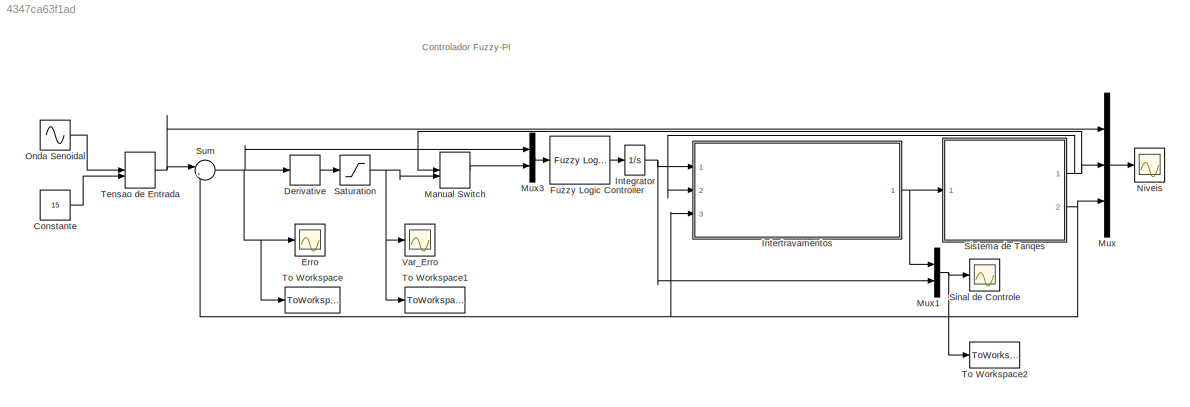
MODEL slx_4347ca63f1ad
KIND model
CONFIG AbsTol = auto
CONFIG EnableMultiTasking = on
CONFIG FixedStep = 0.1
CONFIG MaxStep = 5e-1
CONFIG MinStep = auto
CONFIG RelTol = 1e-3
CONFIG SampleTimeConstraint = Unconstrained
CONFIG Solver = ode45
CONFIG SolverName = ode45
CONFIG StartTime = 0.0
CONFIG StopTime = 250
BLOCK [Constant] Constante
  Value = 15
BLOCK [Derivative] Derivative
BLOCK [Scope] Erro
  Floating = off
  NumInputPorts = 1
  Ports = [1]
  ScopeSpecificationString = Simulink.scopes.TimeScopeBlockCfg('CurrentConfiguration', extmgr.ConfigurationSet(extmgr.Configuration('Core','General UI',true,'FigureColor',[0.941176470588235 0.941176470588235 0.941176470588235]),extmgr.Configuration('Core','Source UI',true),extmgr.Configuration('Sources','WiredSimulink',true,'DataLoggingVariableName','ScopeData2','DataLoggingLimitDataPoints',true,'DataLoggingSaveFormat','Array...<+2866ch>
BLOCK [Reference] Fuzzy Logic Controller  REF=fuzblock/Fuzzy Logic   (lib defined in mdl_858b3b3e7478)
Controller
  Ports = [1, 1]
  SourceBlock = fuzblock/Fuzzy Logic \nController
  SourceProductBaseCode = FL
  SourceType = Fuzzy Inference System
BLOCK [Integrator] Integrator
  Ports = [1, 1]
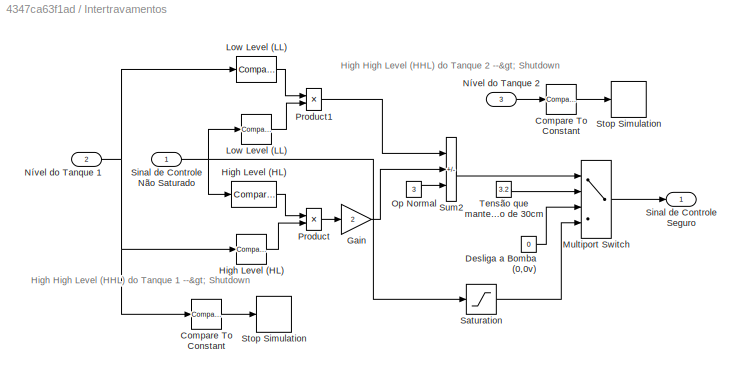
BLOCK [SubSystem] Intertravamentos
  Ports = [3, 1]
  RequestExecContextInheritance = off
BLOCK [Reference] Intertravamentos/Compare To  Constant  REF=simulink/Logic and Bit
Operations/Compare
To Constant
  Ports = [1, 1]
  SourceBlock = simulink/Logic and Bit\nOperations/Compare\nTo Constant
  SourceProductBaseCode = SL
  SourceType = Compare To Constant
BLOCK [Reference] Intertravamentos/Compare To Constant  REF=simulink/Logic and Bit
Operations/Compare
To Constant
  Ports = [1, 1]
  SourceBlock = simulink/Logic and Bit\nOperations/Compare\nTo Constant
  SourceProductBaseCode = SL
  SourceType = Compare To Constant
BLOCK [Constant] Intertravamentos/Desliga a Bomba (0,0v)
  Value = 0
BLOCK [Gain] Intertravamentos/Gain
  Gain = 2
  NameLocation = top
BLOCK [Reference] Intertravamentos/High  Level (HL)  REF=simulink/Logic and Bit
Operations/Compare
To Constant
  NameLocation = top
  Ports = [1, 1]
  SourceBlock = simulink/Logic and Bit\nOperations/Compare\nTo Constant
  SourceProductBaseCode = SL
  SourceType = Compare To Constant
BLOCK [Reference] Intertravamentos/High Level (HL)     REF=simulink/Logic and Bit
Operations/Compare
To Constant
  NameLocation = top
  Ports = [1, 1]
  SourceBlock = simulink/Logic and Bit\nOperations/Compare\nTo Constant
  SourceProductBaseCode = SL
  SourceType = Compare To Constant
BLOCK [Reference] Intertravamentos/Low  Level (LL)  REF=simulink/Logic and Bit
Operations/Compare
To Constant
  NameLocation = top
  Ports = [1, 1]
  SourceBlock = simulink/Logic and Bit\nOperations/Compare\nTo Constant
  SourceProductBaseCode = SL
  SourceType = Compare To Constant
BLOCK [Reference] Intertravamentos/Low Level (LL)  REF=simulink/Logic and Bit
Operations/Compare
To Constant
  NameLocation = top
  Ports = [1, 1]
  SourceBlock = simulink/Logic and Bit\nOperations/Compare\nTo Constant
  SourceProductBaseCode = SL
  SourceType = Compare To Constant
BLOCK [MultiPortSwitch] Intertravamentos/Multiport Switch
  InputSameDT = off
  Ports = [4, 1]
  SaturateOnIntegerOverflow = off
BLOCK [Inport] Intertravamentos/Nível do Tanque 1
  Port = 2
BLOCK [Inport] Intertravamentos/Nível do Tanque 2
  Port = 3
BLOCK [Constant] Intertravamentos/Op Normal
  Value = 3
BLOCK [Product] Intertravamentos/Product
  Ports = [2, 1]
BLOCK [Product] Intertravamentos/Product1
  Ports = [2, 1]
BLOCK [Saturate] Intertravamentos/Saturation
  LowerLimit = -4
  UpperLimit = 4
BLOCK [Inport] Intertravamentos/Sinal de Controle Não Saturado
BLOCK [Outport] Intertravamentos/Sinal de Controle Seguro
BLOCK [Stop] Intertravamentos/Stop  Simulation
BLOCK [Stop] Intertravamentos/Stop Simulation
BLOCK [Sum] Intertravamentos/Sum2
  IconShape = rectangular
  Inputs = --+
  Ports = [3, 1]
BLOCK [Constant] Intertravamentos/Tensão que mantem nível 1 próximo de 30cm
  Value = 3.2
BLOCK [ManualSwitch] Manual Switch
  CurrentSetting = 0
BLOCK [Mux] Mux
  DisplayOption = bar
  Inputs = 3
  Ports = [3, 1]
BLOCK [Mux] Mux1
  DisplayOption = bar
  Inputs = 2
  Ports = [2, 1]
BLOCK [Mux] Mux3
  DisplayOption = bar
  Inputs = 2
  Ports = [2, 1]
BLOCK [Scope] Niveis
  Floating = off
  NumInputPorts = 1
  Ports = [1]
  ScopeSpecificationString = Simulink.scopes.TimeScopeBlockCfg('CurrentConfiguration', extmgr.ConfigurationSet(extmgr.Configuration('Core','General UI',true,'FigureColor',[0.941176470588235 0.941176470588235 0.941176470588235]),extmgr.Configuration('Core','Source UI',true),extmgr.Configuration('Sources','WiredSimulink',true,'DataLogging',true,'DataLoggingVariableName','Niveis','DataLoggingMaxPoints','500000','DataLoggingLimit...<+2969ch>
BLOCK [Sin] Onda Senoidal
  Amplitude = 5
  Bias = 10
  Frequency = 0.1
  Ports = [0, 1]
  SampleTime = 0
BLOCK [Saturate] Saturation
  LowerLimit = -1
  UpperLimit = 1
BLOCK [Scope] Sinal de Controle
  Floating = off
  NumInputPorts = 1
  Ports = [1]
  ScopeSpecificationString = Simulink.scopes.TimeScopeBlockCfg('CurrentConfiguration', extmgr.ConfigurationSet(extmgr.Configuration('Core','General UI',true,'FigureColor',[0.941176470588235 0.941176470588235 0.941176470588235]),extmgr.Configuration('Core','Source UI',true),extmgr.Configuration('Sources','WiredSimulink',true,'DataLoggingVariableName','ScopeData1','DataLoggingLimitDataPoints',true,'DataLoggingSaveFormat','Array...<+2881ch>
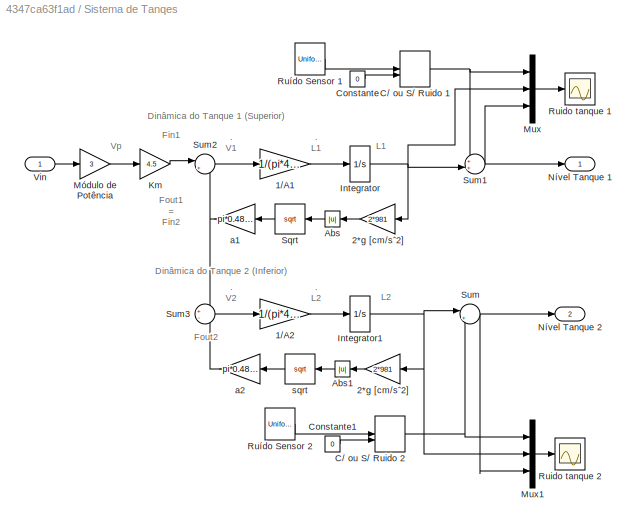
BLOCK [SubSystem] Sistema de Tanqes 
  Ports = [1, 2]
  RequestExecContextInheritance = off
BLOCK [Gain] Sistema de Tanqes /1//A1
  Gain = 1/(pi*4.45^2/4)
BLOCK [Gain] Sistema de Tanqes /1//A2
  Gain = 1/(pi*4.45^2/4)
BLOCK [Gain] Sistema de Tanqes /2*g  [cm//sˆ2]
  Gain = 2*981
BLOCK [Gain] Sistema de Tanqes /2*g [cm//sˆ2]
  Gain = 2*981
BLOCK [Abs] Sistema de Tanqes /Abs
  NameLocation = top
  SaturateOnIntegerOverflow = off
BLOCK [Abs] Sistema de Tanqes /Abs1
  NameLocation = top
  SaturateOnIntegerOverflow = off
BLOCK [ManualSwitch] Sistema de Tanqes /C// ou S// Ruido 1
  CurrentSetting = 0
BLOCK [ManualSwitch] Sistema de Tanqes /C// ou S// Ruido 2
  CurrentSetting = 0
BLOCK [Constant] Sistema de Tanqes /Constante
  Value = 0
BLOCK [Constant] Sistema de Tanqes /Constante1
  Value = 0
BLOCK [Integrator] Sistema de Tanqes /Integrator
  LowerSaturationLimit = 0
  Ports = [1, 1]
  UpperSaturationLimit = 100
BLOCK [Integrator] Sistema de Tanqes /Integrator1
  LowerSaturationLimit = 0
  Ports = [1, 1]
  UpperSaturationLimit = 100
BLOCK [Gain] Sistema de Tanqes /Km
  Gain = 4.5
BLOCK [Mux] Sistema de Tanqes /Mux
  DisplayOption = bar
  Inputs = 3
  Ports = [3, 1]
BLOCK [Mux] Sistema de Tanqes /Mux1
  DisplayOption = bar
  Inputs = 3
  Ports = [3, 1]
BLOCK [Gain] Sistema de Tanqes /Módulo de Potência
  Gain = 3
BLOCK [Outport] Sistema de Tanqes /Nível Tanque 1
BLOCK [Outport] Sistema de Tanqes /Nível Tanque 2
  Port = 2
BLOCK [Scope] Sistema de Tanqes /Ruido tanque 1
  Floating = off
  NumInputPorts = 1
  Ports = [1]
  ScopeSpecificationString = C++SS(StrPVP('Location','[363, 254, 1361, 709]'),StrPVP('Open','off'),MxPVP('AxesTitles',54,'struct(''axes1'',''%<SignalLabel>'')'),MxPVP('ScopeGraphics',57,'struct(''FigureColor'',''[0.5 0.5 0.5]'',''AxesColor'',''[0 0 0]'',''AxesTickColor'',''[1 1 1]'',''LineColors'',''[1 1 0;1 0 1;0 1 1;1 0 0;0 1 0;0 0 1]'',''LineStyles'',''-|-|-|-|-|-'',''LineWidths'',''[0.5 0.5 0.5 0.5 0.5 0.5]'',''MarkerStyl...<+289ch>
BLOCK [Scope] Sistema de Tanqes /Ruido tanque 2
  Floating = off
  NumInputPorts = 1
  Ports = [1]
  ScopeSpecificationString = C++SS(StrPVP('Location','[363, 254, 1361, 709]'),StrPVP('Open','off'),MxPVP('AxesTitles',54,'struct(''axes1'',''%<SignalLabel>'')'),MxPVP('ScopeGraphics',57,'struct(''FigureColor'',''[0.5 0.5 0.5]'',''AxesColor'',''[0 0 0]'',''AxesTickColor'',''[1 1 1]'',''LineColors'',''[1 1 0;1 0 1;0 1 1;1 0 0;0 1 0;0 0 1]'',''LineStyles'',''-|-|-|-|-|-'',''LineWidths'',''[0.5 0.5 0.5 0.5 0.5 0.5]'',''MarkerStyl...<+289ch>
BLOCK [UniformRandomNumber] Sistema de Tanqes /Ruído Sensor 1
  Maximum = 0.1
  Minimum = -0.1
  SampleTime = 0.5
  Seed = round(rand(1)*100)
BLOCK [UniformRandomNumber] Sistema de Tanqes /Ruído Sensor 2
  Maximum = 0.1
  Minimum = -0.1
  SampleTime = 0.7
  Seed = round(rand(1)*100)
BLOCK [Sqrt] Sistema de Tanqes /Sqrt
BLOCK [Sum] Sistema de Tanqes /Sum
  Inputs = |++
  Ports = [2, 1]
BLOCK [Sum] Sistema de Tanqes /Sum1
  Inputs = ++|
  Ports = [2, 1]
BLOCK [Sum] Sistema de Tanqes /Sum2
  Inputs = |+-
  Ports = [2, 1]
BLOCK [Sum] Sistema de Tanqes /Sum3
  Inputs = +-
  Ports = [2, 1]
BLOCK [Inport] Sistema de Tanqes /Vin
BLOCK [Gain] Sistema de Tanqes /a1
  Gain = pi*0.48^2/4
BLOCK [Gain] Sistema de Tanqes /a2
  Gain = pi*0.48^2/4
BLOCK [Sqrt] Sistema de Tanqes /sqrt
BLOCK [Sum] Sum
  Inputs = |+-
  Ports = [2, 1]
BLOCK [ManualSwitch] Tensao de Entrada
  CurrentSetting = 0
BLOCK [ToWorkspace] To Workspace
  FixptAsFi = on
  MaxDataPoints = inf
  Ports = [1]
  SampleTime = -1
  Save2DSignal = 2-D array (concatenate along first dimension)
  SaveFormat = Timeseries
  VariableName = Erro
BLOCK [ToWorkspace] To Workspace1
  FixptAsFi = on
  MaxDataPoints = inf
  Ports = [1]
  SampleTime = -1
  Save2DSignal = 2-D array (concatenate along first dimension)
  SaveFormat = Timeseries
  VariableName = Var_erro
BLOCK [ToWorkspace] To Workspace2
  FixptAsFi = on
  MaxDataPoints = inf
  Ports = [1]
  SampleTime = -1
  Save2DSignal = 2-D array (concatenate along first dimension)
  SaveFormat = Timeseries
  VariableName = SinalDeControle
BLOCK [Scope] Var_Erro
  Floating = off
  NumInputPorts = 1
  Ports = [1]
  ScopeSpecificationString = Simulink.scopes.TimeScopeBlockCfg('CurrentConfiguration', extmgr.ConfigurationSet(extmgr.Configuration('Core','General UI',true,'FigureColor',[0.941176470588235 0.941176470588235 0.941176470588235]),extmgr.Configuration('Core','Source UI',true),extmgr.Configuration('Sources','WiredSimulink',true,'DataLoggingVariableName','ScopeData1','DataLoggingLimitDataPoints',true,'DataLoggingSaveFormat','Array...<+2852ch>
ANNOTATION (root): Controlador Fuzzy-PI
ANNOTATION Intertravamentos: High High Level (HHL) do Tanque 1 --> Shutdown
ANNOTATION Intertravamentos: High High Level (HHL) do Tanque 2 --> Shutdown
ANNOTATION Sistema de Tanqes : . L1
ANNOTATION Sistema de Tanqes : . L2
ANNOTATION Sistema de Tanqes : . V1
ANNOTATION Sistema de Tanqes : . V2
ANNOTATION Sistema de Tanqes : Fout1 = Fin2
ANNOTATION Sistema de Tanqes : Fout2
ANNOTATION Sistema de Tanqes : Dinâmica do Tanque 1 (Superior)
ANNOTATION Sistema de Tanqes : Dinâmica do Tanque 2 (Inferior)
ANNOTATION Sistema de Tanqes : Fin1
ANNOTATION Sistema de Tanqes : L1
ANNOTATION Sistema de Tanqes : L2
ANNOTATION Sistema de Tanqes : Vp
LINE Constante:1 -> Tensao de Entrada:2
LINE Derivative:1 -> Saturation:1
LINE Fuzzy Logic Controller:1 -> Integrator:1
NET Integrator:1 -> Intertravamentos:1, Mux1:2
LINE Intertravamentos/Compare To  Constant:1 -> Intertravamentos/Stop  Simulation:1
LINE Intertravamentos/Compare To Constant:1 -> Intertravamentos/Stop Simulation:1
LINE Intertravamentos/Desliga a Bomba (0,0v):1 -> Intertravamentos/Multiport Switch:3
LINE Intertravamentos/Gain:1 -> Intertravamentos/Sum2:2
LINE Intertravamentos/High  Level (HL):1 -> Intertravamentos/Product:1
LINE Intertravamentos/High Level (HL)   :1 -> Intertravamentos/Product:2
LINE Intertravamentos/Low  Level (LL):1 -> Intertravamentos/Product1:2
LINE Intertravamentos/Low Level (LL):1 -> Intertravamentos/Product1:1
LINE Intertravamentos/Multiport Switch:1 -> Intertravamentos/Sinal de Controle Seguro:1
NET Intertravamentos/Nível do Tanque 1:1 -> Intertravamentos/Compare To  Constant:1, Intertravamentos/High Level (HL)   :1, Intertravamentos/Low Level (LL):1
LINE Intertravamentos/Nível do Tanque 2:1 -> Intertravamentos/Compare To Constant:1
LINE Intertravamentos/Op Normal:1 -> Intertravamentos/Sum2:3
LINE Intertravamentos/Product1:1 -> Intertravamentos/Sum2:1
LINE Intertravamentos/Product:1 -> Intertravamentos/Gain:1
LINE Intertravamentos/Saturation:1 -> Intertravamentos/Multiport Switch:4
NET Intertravamentos/Sinal de Controle Não Saturado:1 -> Intertravamentos/High  Level (HL):1, Intertravamentos/Low  Level (LL):1, Intertravamentos/Saturation:1
LINE Intertravamentos/Sum2:1 -> Intertravamentos/Multiport Switch:1
LINE Intertravamentos/Tensão que mantem nível 1 próximo de 30cm:1 -> Intertravamentos/Multiport Switch:2
NET Intertravamentos:1 -> Mux1:1, Sistema de Tanqes :1
LINE Manual Switch:1 -> Mux3:2
NET Mux1:1 -> Sinal de Controle:1, To Workspace2:1
LINE Mux3:1 -> Fuzzy Logic Controller:1
LINE Mux:1 -> Niveis:1
LINE Onda Senoidal:1 -> Tensao de Entrada:1
NET Saturation:1 -> Manual Switch:2, To Workspace1:1, Var_Erro:1
LINE Sistema de Tanqes /1//A1:1 -> Sistema de Tanqes /Integrator:1
LINE Sistema de Tanqes /1//A2:1 -> Sistema de Tanqes /Integrator1:1
LINE Sistema de Tanqes /2*g  [cm//sˆ2]:1 -> Sistema de Tanqes /Abs1:1
LINE Sistema de Tanqes /2*g [cm//sˆ2]:1 -> Sistema de Tanqes /Abs:1
LINE Sistema de Tanqes /Abs1:1 -> Sistema de Tanqes /sqrt:1
LINE Sistema de Tanqes /Abs:1 -> Sistema de Tanqes /Sqrt:1
NET Sistema de Tanqes /C// ou S// Ruido 1:1 -> Sistema de Tanqes /Mux:1, Sistema de Tanqes /Sum1:1
NET Sistema de Tanqes /C// ou S// Ruido 2:1 -> Sistema de Tanqes /Mux1:1, Sistema de Tanqes /Sum:2
LINE Sistema de Tanqes /Constante1:1 -> Sistema de Tanqes /C// ou S// Ruido 2:2
LINE Sistema de Tanqes /Constante:1 -> Sistema de Tanqes /C// ou S// Ruido 1:2
NET Sistema de Tanqes /Integrator1:1 -> Sistema de Tanqes /2*g  [cm//sˆ2]:1, Sistema de Tanqes /Mux1:2, Sistema de Tanqes /Sum:1
NET Sistema de Tanqes /Integrator:1 -> Sistema de Tanqes /2*g [cm//sˆ2]:1, Sistema de Tanqes /Mux:2, Sistema de Tanqes /Sum1:2
LINE Sistema de Tanqes /Km:1 -> Sistema de Tanqes /Sum2:1
LINE Sistema de Tanqes /Mux1:1 -> Sistema de Tanqes /Ruido tanque 2:1
LINE Sistema de Tanqes /Mux:1 -> Sistema de Tanqes /Ruido tanque 1:1
LINE Sistema de Tanqes /Módulo de Potência:1 -> Sistema de Tanqes /Km:1
LINE Sistema de Tanqes /Ruído Sensor 1:1 -> Sistema de Tanqes /C// ou S// Ruido 1:1
LINE Sistema de Tanqes /Ruído Sensor 2:1 -> Sistema de Tanqes /C// ou S// Ruido 2:1
LINE Sistema de Tanqes /Sqrt:1 -> Sistema de Tanqes /a1:1
NET Sistema de Tanqes /Sum1:1 -> Sistema de Tanqes /Mux:3, Sistema de Tanqes /Nível Tanque 1:1
LINE Sistema de Tanqes /Sum2:1 -> Sistema de Tanqes /1//A1:1
LINE Sistema de Tanqes /Sum3:1 -> Sistema de Tanqes /1//A2:1
NET Sistema de Tanqes /Sum:1 -> Sistema de Tanqes /Mux1:3, Sistema de Tanqes /Nível Tanque 2:1
LINE Sistema de Tanqes /Vin:1 -> Sistema de Tanqes /Módulo de Potência:1
NET Sistema de Tanqes /a1:1 -> Sistema de Tanqes /Sum2:2, Sistema de Tanqes /Sum3:1
LINE Sistema de Tanqes /a2:1 -> Sistema de Tanqes /Sum3:2
LINE Sistema de Tanqes /sqrt:1 -> Sistema de Tanqes /a2:1
NET Sistema de Tanqes :1 -> Intertravamentos:2, Manual Switch:1, Mux:2
NET Sistema de Tanqes :2 -> Intertravamentos:3, Mux:3, Sum:2
NET Sum:1 -> Derivative:1, Erro:1, Mux3:1, To Workspace:1
NET Tensao de Entrada:1 -> Mux:1, Sum:1
note: NET lines group one-source signal fan-out (src -> all destinations, sorted); 1:1 wires keep LINE
